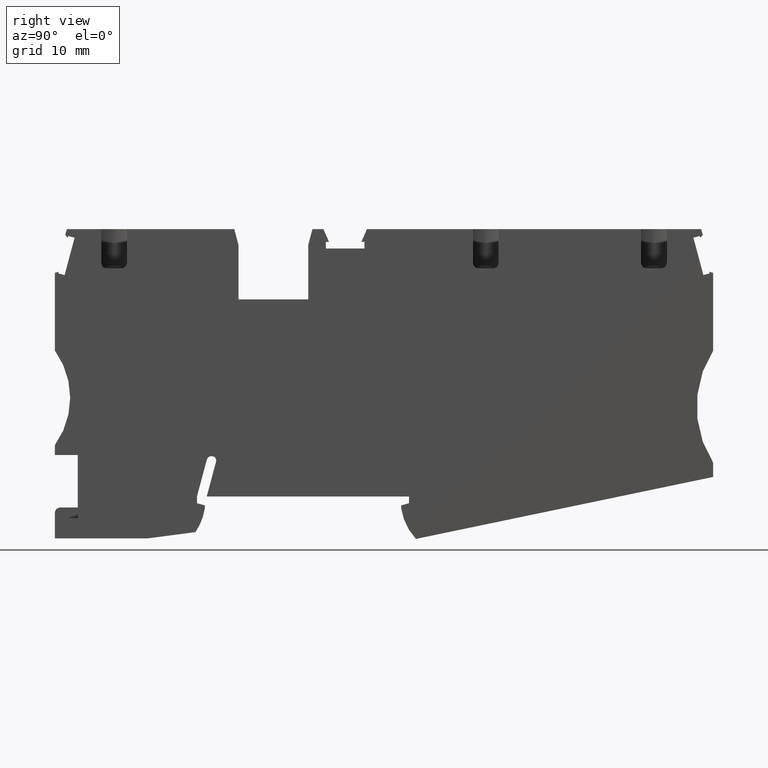
[diagram: clean part render]
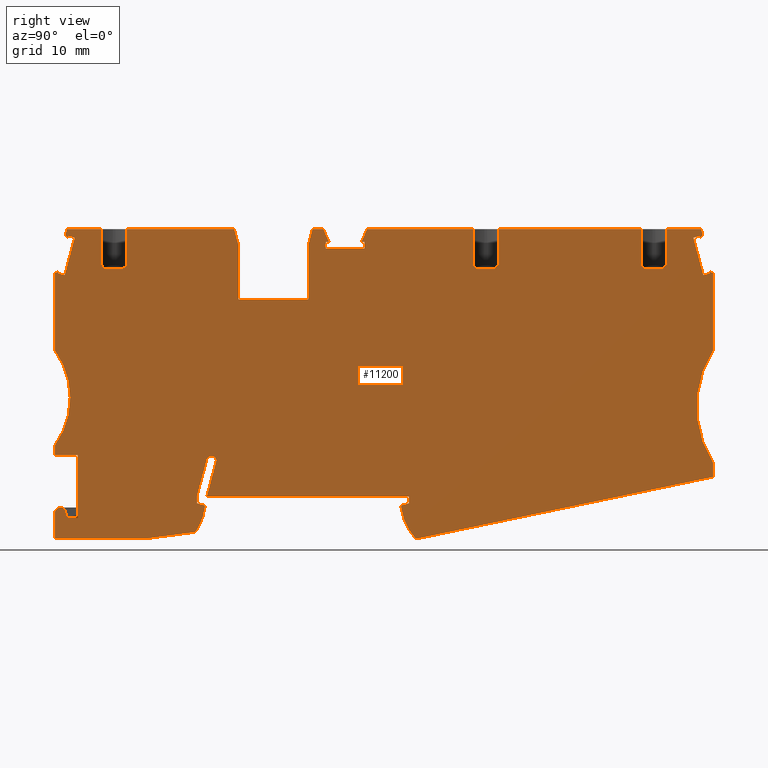
[diagram: same view with one face highlighted and labeled with its STEP entity id]
A machine part, right view. The second image highlights one B-rep face of the part: STEP entity #11200.
In plain terms, the highlighted planar face has unit normal (1, -0, -0).
Its self-contained STEP definition (entity closure, byte-faithful):
#4870=CARTESIAN_POINT('',(40.3897292437142,-1.37087776410223,-311.5));
#4880=DIRECTION('',(0.,0.,1.));
#4890=DIRECTION('',(1.,0.,0.));
#4900=AXIS2_PLACEMENT_3D('',#4870,#4880,#4890);
#4910=PLANE('',#4900);
#4920=CARTESIAN_POINT('',(23.5732116749715,-0.489281859000286,-311.5));
#4930=DIRECTION('',(0.,0.,1.));
#4940=DIRECTION('',(1.,0.,0.));
#4950=AXIS2_PLACEMENT_3D('',#4920,#4930,#4940);
#4960=CIRCLE('',#4950,9.499999999999);
#4970=CARTESIAN_POINT('',(14.1792389955952,-1.90465364729897,-311.5));
#4980=VERTEX_POINT('',#4970);
#4990=CARTESIAN_POINT('',(16.6027502113104,-6.94394428112553,-311.5));
#5000=VERTEX_POINT('',#4990);
#5010=EDGE_CURVE('',#4980,#5000,#4960,.T.);
#5020=ORIENTED_EDGE('',*,*,#5010,.T.);
#5030=CARTESIAN_POINT('',(14.1792389955965,-0.00465364729787865,
-311.500000000187));
#5040=DIRECTION('',(-6.9022565440946E-13,-1.,0.));
#5050=VECTOR('',#5040,1.);
#5060=LINE('',#5030,#5050);
#5070=CARTESIAN_POINT('',(14.1792389955955,-1.45298759745816,-311.5));
#5080=VERTEX_POINT('',#5070);
#5090=EDGE_CURVE('',#5080,#4980,#5060,.T.);
#5100=ORIENTED_EDGE('',*,*,#5090,.T.);
#5110=CARTESIAN_POINT('',(0.079238995595567,-5.23107121073597,
-311.500000000187));
#5120=DIRECTION('',(-0.965925826289086,-0.258819045102457,0.));
#5130=VECTOR('',#5120,1.);
#5140=LINE('',#5110,#5130);
#5150=CARTESIAN_POINT('',(15.4792389955956,-1.10465364729777,-311.5));
#5160=VERTEX_POINT('',#5150);
#5170=EDGE_CURVE('',#5160,#5080,#5140,.T.);
#5180=ORIENTED_EDGE('',*,*,#5170,.T.);
#5190=CARTESIAN_POINT('',(15.4792389955956,-0.00465364729787865,
-311.500000000187));
#5200=DIRECTION('',(0.,-1.,0.));
#5210=VECTOR('',#5200,1.);
#5220=LINE('',#5190,#5210);
#5230=CARTESIAN_POINT('',(15.4792389955956,-0.0046536472987242,-311.5));
#5240=VERTEX_POINT('',#5230);
#5250=EDGE_CURVE('',#5240,#5160,#5220,.T.);
#5260=ORIENTED_EDGE('',*,*,#5250,.T.);
#5270=CARTESIAN_POINT('',(0.079238995595567,-0.0046536472987242,
-311.500000000187));
#5280=DIRECTION('',(1.,0.,0.));
#5290=VECTOR('',#5280,1.);
#5300=LINE('',#5270,#5290);
#5310=CARTESIAN_POINT('',(-17.6207610044075,-0.0046536472987242,-311.5))
;
#5320=VERTEX_POINT('',#5310);
#5330=EDGE_CURVE('',#5320,#5240,#5300,.T.);
#5340=ORIENTED_EDGE('',*,*,#5330,.T.);
#5350=CARTESIAN_POINT('',(-17.6207610044073,-0.00465364729787865,
-311.500000000187));
#5360=DIRECTION('',(-0.258819045102995,-0.965925826288942,0.));
#5370=VECTOR('',#5360,1.);
#5380=LINE('',#5350,#5370);
#5390=CARTESIAN_POINT('',(-16.0924731774692,5.69899417141307,-311.5));
#5400=VERTEX_POINT('',#5390);
#5410=EDGE_CURVE('',#5400,#5320,#5380,.T.);
#5420=ORIENTED_EDGE('',*,*,#5410,.T.);
#5430=CARTESIAN_POINT('',(-16.7686212558717,5.88016750298492,
-311.500000000187));
#5440=DIRECTION('',(0.,0.,1.));
#5450=DIRECTION('',(1.,0.,0.));
#5460=AXIS2_PLACEMENT_3D('',#5430,#5440,#5450);
#5470=CIRCLE('',#5460,0.700000000000186);
#5480=CARTESIAN_POINT('',(-16.6087698885905,6.56167138439615,-311.5));
#5490=VERTEX_POINT('',#5480);
#5500=EDGE_CURVE('',#5400,#5490,#5470,.T.);
#5510=ORIENTED_EDGE('',*,*,#5500,.F.);
#5520=CARTESIAN_POINT('',(-16.8384347439757,5.79534635270211,
-311.500000000187));
#5530=DIRECTION('',(0.,0.,1.));
#5540=DIRECTION('',(1.,0.,0.));
#5550=AXIS2_PLACEMENT_3D('',#5520,#5530,#5540);
#5560=CIRCLE('',#5550,0.799999999999994);
#5570=CARTESIAN_POINT('',(-17.6111754050068,6.00240158878474,-311.5));
#5580=VERTEX_POINT('',#5570);
#5590=EDGE_CURVE('',#5490,#5580,#5560,.T.);
#5600=ORIENTED_EDGE('',*,*,#5590,.F.);
#5610=CARTESIAN_POINT('',(-19.2207610044058,-0.00465364729787865,
-311.500000000187));
#5620=DIRECTION('',(0.258819045103168,0.965925826288895,0.));
#5630=VECTOR('',#5620,1.);
#5640=LINE('',#5610,#5630);
#5650=CARTESIAN_POINT('',(-19.2207610044042,-0.00465364729206924,-311.5)
);
#5660=VERTEX_POINT('',#5650);
#5670=EDGE_CURVE('',#5660,#5580,#5640,.T.);
#5680=ORIENTED_EDGE('',*,*,#5670,.T.);
#5690=CARTESIAN_POINT('',(-19.2207610044043,-0.00465364729787865,
-311.500000000187));
#5700=DIRECTION('',(0.,1.,0.));
#5710=VECTOR('',#5700,1.);
#5720=LINE('',#5690,#5710);
#5730=CARTESIAN_POINT('',(-19.2207610044043,-1.10465364729774,-311.5));
#5740=VERTEX_POINT('',#5730);
#5750=EDGE_CURVE('',#5740,#5660,#5720,.T.);
#5760=ORIENTED_EDGE('',*,*,#5750,.T.);
#5770=CARTESIAN_POINT('',(0.079238995595567,-6.27607306122062,
-311.500000000187));
#5780=DIRECTION('',(-0.96592582628904,0.258819045102626,0.));
#5790=VECTOR('',#5780,1.);
#5800=LINE('',#5770,#5790);
#5810=CARTESIAN_POINT('',(-17.9207610044046,-1.45298759745826,-311.5));
#5820=VERTEX_POINT('',#5810);
#5830=EDGE_CURVE('',#5820,#5740,#5800,.T.);
#5840=ORIENTED_EDGE('',*,*,#5830,.T.);
#5850=CARTESIAN_POINT('',(-17.9207610044046,-0.00465364729787865,
-311.500000000187));
#5860=DIRECTION('',(0.,1.,0.));
#5870=VECTOR('',#5860,1.);
#5880=LINE('',#5850,#5870);
#5890=CARTESIAN_POINT('',(-17.9207610044046,-1.90465364729881,-311.5));
#5900=VERTEX_POINT('',#5890);
#5910=EDGE_CURVE('',#5900,#5820,#5880,.T.);
#5920=ORIENTED_EDGE('',*,*,#5910,.T.);
#5930=CARTESIAN_POINT('',(-27.3147336837811,-0.489281859000223,
-311.500000000187));
#5940=DIRECTION('',(0.,0.,1.));
#5950=DIRECTION('',(1.,0.,0.));
#5960=AXIS2_PLACEMENT_3D('',#5930,#5940,#5950);
#5970=CIRCLE('',#5960,9.49999999999916);
#5980=CARTESIAN_POINT('',(-19.4552630563244,-5.8258276946629,-311.5));
#5990=VERTEX_POINT('',#5980);
#6000=EDGE_CURVE('',#5990,#5900,#5970,.T.);
#6010=ORIENTED_EDGE('',*,*,#6000,.T.);
#6020=CARTESIAN_POINT('',(0.079238995595567,-3.25406171040154,
-311.500000000187));
#6030=DIRECTION('',(0.99144486137381,0.130526192220051,0.));
#6040=VECTOR('',#6030,1.);
#6050=LINE('',#6020,#6040);
#6060=CARTESIAN_POINT('',(-27.269970265555,-6.85465341667235,-311.5));
#6070=VERTEX_POINT('',#6060);
#6080=EDGE_CURVE('',#6070,#5990,#6050,.T.);
#6090=ORIENTED_EDGE('',*,*,#6080,.T.);
#6100=CARTESIAN_POINT('',(41.9231916323762,-6.85465341667235,
-311.500000000187));
#6110=DIRECTION('',(1.,0.,0.));
#6120=VECTOR('',#6110,1.);
#6130=LINE('',#6100,#6120);
#6140=CARTESIAN_POINT('',(-42.4707610044097,-6.85465341667235,-311.5));
#6150=VERTEX_POINT('',#6140);
#6160=EDGE_CURVE('',#6150,#6070,#6130,.T.);
#6170=ORIENTED_EDGE('',*,*,#6160,.T.);
#6180=CARTESIAN_POINT('',(-42.470761004408,-0.0046536472966423,
-311.500000000187));
#6190=DIRECTION('',(-2.56261314536511E-13,-1.,0.));
#6200=VECTOR('',#6190,1.);
#6210=LINE('',#6180,#6200);
#6220=CARTESIAN_POINT('',(-42.4707610044087,-2.70465364729745,-311.5));
#6230=VERTEX_POINT('',#6220);
#6240=EDGE_CURVE('',#6230,#6150,#6210,.T.);
#6250=ORIENTED_EDGE('',*,*,#6240,.T.);
#6260=CARTESIAN_POINT('',(-41.5707610044088,-2.70465364729768,
-311.500000000187));
#6270=DIRECTION('',(0.,0.,1.));
#6280=DIRECTION('',(1.,0.,0.));
#6290=AXIS2_PLACEMENT_3D('',#6260,#6270,#6280);
#6300=CIRCLE('',#6290,0.899999999999826);
#6310=CARTESIAN_POINT('',(-40.684434026698,-2.54837028739749,-311.5));
#6320=VERTEX_POINT('',#6310);
#6330=EDGE_CURVE('',#6320,#6230,#6300,.T.);
#6340=ORIENTED_EDGE('',*,*,#6330,.T.);
#6350=CARTESIAN_POINT('',(-40.7330059055458,-2.27290547394301,
-311.500000000187));
#6360=DIRECTION('',(0.17364817766693,-0.984807753012208,0.));
#6370=VECTOR('',#6360,1.);
#6380=LINE('',#6350,#6370);
#6390=CARTESIAN_POINT('',(-40.5573936739967,-3.26885193003045,-311.5));
#6400=VERTEX_POINT('',#6390);
#6410=EDGE_CURVE('',#6320,#6400,#6380,.T.);
#6420=ORIENTED_EDGE('',*,*,#6410,.F.);
#6430=CARTESIAN_POINT('',(-40.2619808923256,-3.2167626861757,
-311.500000000187));
#6440=DIRECTION('',(0.,0.,-1.));
#6450=DIRECTION('',(-1.,0.,0.));
#6460=AXIS2_PLACEMENT_3D('',#6430,#6440,#6450);
#6470=CIRCLE('',#6460,0.29997);
#6480=CARTESIAN_POINT('',(-40.2619808923256,-3.5167326861757,-311.5));
#6490=VERTEX_POINT('',#6480);
#6500=EDGE_CURVE('',#6490,#6400,#6470,.T.);
#6510=ORIENTED_EDGE('',*,*,#6500,.T.);
#6520=CARTESIAN_POINT('',(36.0639591977703,-3.5167326861757,
-311.500000000187));
#6530=DIRECTION('',(1.,0.,0.));
#6540=VECTOR('',#6530,1.);
#6550=LINE('',#6520,#6540);
#6560=CARTESIAN_POINT('',(-38.7207757619092,-3.5167326861757,-311.5));
#6570=VERTEX_POINT('',#6560);
#6580=EDGE_CURVE('',#6490,#6570,#6550,.T.);
#6590=ORIENTED_EDGE('',*,*,#6580,.F.);
#6600=CARTESIAN_POINT('',(-38.7207757619092,-2.27290547394301,
-311.500000000187));
#6610=DIRECTION('',(0.,1.,0.));
#6620=VECTOR('',#6610,1.);
#6630=LINE('',#6600,#6620);
#6640=CARTESIAN_POINT('',(-38.7207757619092,6.79534635270041,-311.5));
#6650=VERTEX_POINT('',#6640);
#6660=EDGE_CURVE('',#6570,#6650,#6630,.T.);
#6670=ORIENTED_EDGE('',*,*,#6660,.F.);
#6680=CARTESIAN_POINT('',(0.,6.79534635270042,-311.5));
#6690=DIRECTION('',(1.,1.28021104781828E-16,0.));
#6700=VECTOR('',#6690,1.);
#6710=LINE('',#6680,#6700);
#6720=CARTESIAN_POINT('',(-42.4707610044104,6.79534635270041,-311.5));
#6730=VERTEX_POINT('',#6720);
#6740=EDGE_CURVE('',#6730,#6650,#6710,.T.);
#6750=ORIENTED_EDGE('',*,*,#6740,.T.);
#6760=CARTESIAN_POINT('',(-42.4707610044104,-1.77635683940025E-15,
-311.500000000187));
#6770=DIRECTION('',(0.,1.,0.));
#6780=VECTOR('',#6770,1.);
#6790=LINE('',#6760,#6780);
#6800=CARTESIAN_POINT('',(-42.4707610044104,8.39534635269172,-311.5));
#6810=VERTEX_POINT('',#6800);
#6820=EDGE_CURVE('',#6730,#6810,#6790,.T.);
#6830=ORIENTED_EDGE('',*,*,#6820,.F.);
#6840=CARTESIAN_POINT('',(-53.1561482224695,16.1453463527008,
-311.500000000187));
#6850=DIRECTION('',(0.,0.,-1.));
#6860=DIRECTION('',(-1.,0.,0.));
#6870=AXIS2_PLACEMENT_3D('',#6840,#6850,#6860);
#6880=CIRCLE('',#6870,13.2);
#6890=CARTESIAN_POINT('',(-42.4707610044104,23.8953463527098,-311.5));
#6900=VERTEX_POINT('',#6890);
#6910=EDGE_CURVE('',#6900,#6810,#6880,.T.);
#6920=ORIENTED_EDGE('',*,*,#6910,.T.);
#6930=CARTESIAN_POINT('',(-42.4707610044105,-1.77635683940025E-15,
-311.500000000187));
#6940=DIRECTION('',(1.11022302462516E-16,-1.,0.));
#6950=VECTOR('',#6940,1.);
#6960=LINE('',#6930,#6950);
#6970=CARTESIAN_POINT('',(-42.4707610044105,36.5906133774011,-311.5));
#6980=VERTEX_POINT('',#6970);
#6990=EDGE_CURVE('',#6980,#6900,#6960,.T.);
#7000=ORIENTED_EDGE('',*,*,#6990,.T.);
#7010=CARTESIAN_POINT('',(0.,47.9706194901391,-311.500000000187));
#7020=DIRECTION('',(0.965925826290939,0.25881904509554,0.));
#7030=VECTOR('',#7020,1.);
#7040=LINE('',#7010,#7030);
#7050=CARTESIAN_POINT('',(-41.831857148107,36.7618071497337,-311.5));
#7060=VERTEX_POINT('',#7050);
#7070=EDGE_CURVE('',#6980,#7060,#7040,.T.);
#7080=ORIENTED_EDGE('',*,*,#7070,.F.);
#7090=CARTESIAN_POINT('',(-51.6834006272622,-0.00465364729792483,
-311.500000000187));
#7100=DIRECTION('',(0.258819045103503,0.965925826288805,0.));
#7110=VECTOR('',#7100,1.);
#7120=LINE('',#7090,#7110);
#7130=CARTESIAN_POINT('',(-41.902335546583,36.4987781857864,-311.5));
#7140=VERTEX_POINT('',#7130);
#7150=EDGE_CURVE('',#7140,#7060,#7120,.T.);
#7160=ORIENTED_EDGE('',*,*,#7150,.T.);
#7170=CARTESIAN_POINT('',(2.08615347219165E-11,25.2710812150724,
-311.500000000187));
#7180=DIRECTION('',(-0.965925826288933,0.258819045103026,0.));
#7190=VECTOR('',#7180,1.);
#7200=LINE('',#7170,#7190);
#7210=CARTESIAN_POINT('',(-40.8687949124653,36.2218418075292,-311.5));
#7220=VERTEX_POINT('',#7210);
#7230=EDGE_CURVE('',#7220,#7140,#7200,.T.);
#7240=ORIENTED_EDGE('',*,*,#7230,.T.);
#7250=CARTESIAN_POINT('',(-50.3968108686426,0.662802164397584,
-311.500000000187));
#7260=DIRECTION('',(0.258819045106929,0.965925826287887,0.));
#7270=VECTOR('',#7260,1.);
#7280=LINE('',#7250,#7270);
#7290=CARTESIAN_POINT('',(-39.2317644521368,42.3313226589013,-311.5));
#7300=VERTEX_POINT('',#7290);
#7310=EDGE_CURVE('',#7220,#7300,#7280,.T.);
#7320=ORIENTED_EDGE('',*,*,#7310,.F.);
#7330=CARTESIAN_POINT('',(2.08615347219165E-11,31.8192030561188,
-311.500000000187));
#7340=DIRECTION('',(0.965925826287968,-0.258819045106629,0.));
#7350=VECTOR('',#7340,1.);
#7360=LINE('',#7330,#7350);
#7370=CARTESIAN_POINT('',(-40.2653050862649,42.6082590371653,-311.5));
#7380=VERTEX_POINT('',#7370);
#7390=EDGE_CURVE('',#7380,#7300,#7360,.T.);
#7400=ORIENTED_EDGE('',*,*,#7390,.T.);
#7410=CARTESIAN_POINT('',(-37.0892151967411,54.4615878740956,
-311.500000000187));
#7420=DIRECTION('',(0.258819045106152,0.965925826288095,0.));
#7430=VECTOR('',#7420,1.);
#7440=LINE('',#7410,#7430);
#7450=CARTESIAN_POINT('',(-40.3357834847421,42.3452300732161,-311.5));
#7460=VERTEX_POINT('',#7450);
#7470=EDGE_CURVE('',#7460,#7380,#7440,.T.);
#7480=ORIENTED_EDGE('',*,*,#7470,.T.);
#7490=CARTESIAN_POINT('',(2.01410023551585,-0.00465364729791817,
-311.500000000187));
#7500=DIRECTION('',(0.70710678118441,-0.707106781188685,0.));
#7510=VECTOR('',#7500,1.);
#7520=LINE('',#7490,#7510);
#7530=CARTESIAN_POINT('',(-40.7685266726324,42.777973261109,-311.5));
#7540=VERTEX_POINT('',#7530);
#7550=EDGE_CURVE('',#7540,#7460,#7520,.T.);
#7560=ORIENTED_EDGE('',*,*,#7550,.T.);
#7570=CARTESIAN_POINT('',(-52.0153110399529,0.804402581302007,
-311.500000000187));
#7580=DIRECTION('',(-0.25881904510715,-0.965925826287828,0.));
#7590=VECTOR('',#7580,1.);
#7600=LINE('',#7570,#7590);
#7610=CARTESIAN_POINT('',(-40.5093198339557,43.7453463527013,-311.5));
#7620=VERTEX_POINT('',#7610);
#7630=EDGE_CURVE('',#7620,#7540,#7600,.T.);
#7640=ORIENTED_EDGE('',*,*,#7630,.T.);
#7650=CARTESIAN_POINT('',(0.,43.7453463527013,-311.500000000187));
#7660=DIRECTION('',(1.,0.,0.));
#7670=VECTOR('',#7660,1.);
#7680=LINE('',#7650,#7670);
#7690=CARTESIAN_POINT('',(-34.8707610044044,43.7453463527013,-311.5));
#7700=VERTEX_POINT('',#7690);
#7710=EDGE_CURVE('',#7620,#7700,#7680,.T.);
#7720=ORIENTED_EDGE('',*,*,#7710,.F.);
#7730=CARTESIAN_POINT('',(-34.8707610044044,-2.27290547394301,
-311.500000000187));
#7740=DIRECTION('',(0.,1.,0.));
#7750=VECTOR('',#7740,1.);
#7760=LINE('',#7730,#7750);
#7770=CARTESIAN_POINT('',(-34.8707610044044,38.245346352689,-311.5));
#7780=VERTEX_POINT('',#7770);
#7790=EDGE_CURVE('',#7780,#7700,#7760,.T.);
#7800=ORIENTED_EDGE('',*,*,#7790,.T.);
#7810=CARTESIAN_POINT('',(-33.8707610044044,38.245346352689,
-311.500000000187));
#7820=DIRECTION('',(0.,-1.3924232573003E-14,-1.));
#7830=DIRECTION('',(0.,-1.,1.3924232573003E-14));
#7840=AXIS2_PLACEMENT_3D('',#7810,#7820,#7830);
#7850=CIRCLE('',#7840,1.);
#7860=CARTESIAN_POINT('',(-33.8707610044044,37.245346352689,-311.5));
#7870=VERTEX_POINT('',#7860);
#7880=EDGE_CURVE('',#7870,#7780,#7850,.T.);
#7890=ORIENTED_EDGE('',*,*,#7880,.T.);
#7900=CARTESIAN_POINT('',(36.0639591977703,37.245346352689,
-311.500000000187));
#7910=DIRECTION('',(1.,-2.94070999470988E-35,0.));
#7920=VECTOR('',#7910,1.);
#7930=LINE('',#7900,#7920);
#7940=CARTESIAN_POINT('',(-31.6707610044044,37.245346352689,-311.5));
#7950=VERTEX_POINT('',#7940);
#7960=EDGE_CURVE('',#7870,#7950,#7930,.T.);
#7970=ORIENTED_EDGE('',*,*,#7960,.F.);
#7980=CARTESIAN_POINT('',(-31.6707610044044,38.245346352689,
-311.500000000187));
#7990=DIRECTION('',(0.,-1.3924232573003E-14,-1.));
#8000=DIRECTION('',(0.,-1.,1.3924232573003E-14));
#8010=AXIS2_PLACEMENT_3D('',#7980,#7990,#8000);
#8020=CIRCLE('',#8010,1.);
#8030=CARTESIAN_POINT('',(-30.6707610044044,38.245346352689,-311.5));
#8040=VERTEX_POINT('',#8030);
#8050=EDGE_CURVE('',#8040,#7950,#8020,.T.);
#8060=ORIENTED_EDGE('',*,*,#8050,.T.);
#8070=CARTESIAN_POINT('',(-30.6707610044044,-2.27290547394301,
-311.500000000187));
#8080=DIRECTION('',(0.,1.,0.));
#8090=VECTOR('',#8080,1.);
#8100=LINE('',#8070,#8090);
#8110=CARTESIAN_POINT('',(-30.6707610044044,43.7453463527013,-311.5));
#8120=VERTEX_POINT('',#8110);
#8130=EDGE_CURVE('',#8040,#8120,#8100,.T.);
#8140=ORIENTED_EDGE('',*,*,#8130,.F.);
#8150=CARTESIAN_POINT('',(-13.1174289047254,43.7453463527013,-311.5));
#8160=VERTEX_POINT('',#8150);
#8170=EDGE_CURVE('',#8120,#8160,#7680,.T.);
#8180=ORIENTED_EDGE('',*,*,#8170,.F.);
#8190=CARTESIAN_POINT('',(-1.40432529493389,0.0314485666422808,
-311.500000000187));
#8200=DIRECTION('',(0.258819045102528,-0.965925826289066,0.));
#8210=VECTOR('',#8200,1.);
#8220=LINE('',#8190,#8210);
#8230=CARTESIAN_POINT('',(-12.4207610044044,41.1453463527013,-311.5));
#8240=VERTEX_POINT('',#8230);
#8250=EDGE_CURVE('',#8160,#8240,#8220,.T.);
#8260=ORIENTED_EDGE('',*,*,#8250,.F.);
#8270=CARTESIAN_POINT('',(-12.4207610044044,-1.77635683940025E-15,
-311.500000000187));
#8280=DIRECTION('',(2.09097636008262E-16,-1.,0.));
#8290=VECTOR('',#8280,1.);
#8300=LINE('',#8270,#8290);
#8310=CARTESIAN_POINT('',(-12.4207610044044,32.2453463527013,-311.5));
#8320=VERTEX_POINT('',#8310);
#8330=EDGE_CURVE('',#8240,#8320,#8300,.T.);
#8340=ORIENTED_EDGE('',*,*,#8330,.F.);
#8350=CARTESIAN_POINT('',(0.,32.2453463527013,-311.500000000187));
#8360=DIRECTION('',(1.,0.,0.));
#8370=VECTOR('',#8360,1.);
#8380=LINE('',#8350,#8370);
#8390=CARTESIAN_POINT('',(-1.02076100440444,32.2453463527013,-311.5));
#8400=VERTEX_POINT('',#8390);
#8410=EDGE_CURVE('',#8320,#8400,#8380,.T.);
#8420=ORIENTED_EDGE('',*,*,#8410,.F.);
#8430=CARTESIAN_POINT('',(-1.02076100440444,-1.77635683940025E-15,
-311.500000000187));
#8440=DIRECTION('',(0.,1.,0.));
#8450=VECTOR('',#8440,1.);
#8460=LINE('',#8430,#8450);
#8470=CARTESIAN_POINT('',(-1.02076100440444,41.1453463527013,-311.5));
#8480=VERTEX_POINT('',#8470);
#8490=EDGE_CURVE('',#8400,#8480,#8460,.T.);
#8500=ORIENTED_EDGE('',*,*,#8490,.F.);
#8510=CARTESIAN_POINT('',(-12.0456233319096,-1.77635683940025E-15,
-311.500000000187));
#8520=DIRECTION('',(0.258819045102521,0.965925826289068,0.));
#8530=VECTOR('',#8520,1.);
#8540=LINE('',#8510,#8530);
#8550=CARTESIAN_POINT('',(-0.324093104083525,43.7453463527013,-311.5));
#8560=VERTEX_POINT('',#8550);
#8570=EDGE_CURVE('',#8480,#8560,#8540,.T.);
#8580=ORIENTED_EDGE('',*,*,#8570,.F.);
#8590=CARTESIAN_POINT('',(0.,43.7453463527013,-311.500000000187));
#8600=DIRECTION('',(1.,0.,0.));
#8610=VECTOR('',#8600,1.);
#8620=LINE('',#8590,#8610);
#8630=CARTESIAN_POINT('',(1.46753955185464,43.7453463527013,-311.5));
#8640=VERTEX_POINT('',#8630);
#8650=EDGE_CURVE('',#8560,#8640,#8620,.T.);
#8660=ORIENTED_EDGE('',*,*,#8650,.F.);
#8670=CARTESIAN_POINT('',(20.6916521269261,-1.77635683940025E-15,
-311.500000000187));
#8680=DIRECTION('',(0.402320578211921,-0.915498854366965,0.));
#8690=VECTOR('',#8680,1.);
#8700=LINE('',#8670,#8690);
#8710=CARTESIAN_POINT('',(2.39259239391454,41.6403463527046,-311.5));
#8720=VERTEX_POINT('',#8710);
#8730=EDGE_CURVE('',#8640,#8720,#8700,.T.);
#8740=ORIENTED_EDGE('',*,*,#8730,.F.);
#8750=CARTESIAN_POINT('',(-9.83326100440379,41.6403463527046,
-311.500000000187));
#8760=DIRECTION('',(-1.,-3.4315449377114E-29,0.));
#8770=VECTOR('',#8760,1.);
#8780=LINE('',#8750,#8770);
#8790=CARTESIAN_POINT('',(1.86673899559551,41.6403463527046,-311.5));
#8800=VERTEX_POINT('',#8790);
#8810=EDGE_CURVE('',#8720,#8800,#8780,.T.);
#8820=ORIENTED_EDGE('',*,*,#8810,.F.);
#8830=CARTESIAN_POINT('',(1.86673899559551,-0.00465364729787865,
-311.500000000187));
#8840=DIRECTION('',(0.,1.,0.));
#8850=VECTOR('',#8840,1.);
#8860=LINE('',#8830,#8850);
#8870=CARTESIAN_POINT('',(1.86673899559551,40.570346352705,-311.5));
#8880=VERTEX_POINT('',#8870);
#8890=EDGE_CURVE('',#8880,#8800,#8860,.T.);
#8900=ORIENTED_EDGE('',*,*,#8890,.T.);
#8910=CARTESIAN_POINT('',(0.,40.5703463527051,-311.500000000187));
#8920=DIRECTION('',(-1.,5.79813974610488E-14,0.));
#8930=VECTOR('',#8920,1.);
#8940=LINE('',#8910,#8930);
#8950=CARTESIAN_POINT('',(8.19173899559501,40.5703463527046,-311.5));
#8960=VERTEX_POINT('',#8950);
#8970=EDGE_CURVE('',#8960,#8880,#8940,.T.);
#8980=ORIENTED_EDGE('',*,*,#8970,.T.);
#8990=CARTESIAN_POINT('',(8.19173899559562,-0.00465364729787865,
-311.500000000187));
#9000=DIRECTION('',(0.,-1.,0.));
#9010=VECTOR('',#9000,1.);
#9020=LINE('',#8990,#9010);
#9030=CARTESIAN_POINT('',(8.19173899559501,41.6403463527046,-311.5));
#9040=VERTEX_POINT('',#9030);
#9050=EDGE_CURVE('',#9040,#8960,#9020,.T.);
#9060=ORIENTED_EDGE('',*,*,#9050,.T.);
#9070=CARTESIAN_POINT('',(19.891738995595,41.6403463527046,
-311.500000000187));
#9080=DIRECTION('',(-1.,-3.4315449377114E-29,0.));
#9090=VECTOR('',#9080,1.);
#9100=LINE('',#9070,#9090);
#9110=CARTESIAN_POINT('',(7.66588559727528,41.6403463527046,-311.5));
#9120=VERTEX_POINT('',#9110);
#9130=EDGE_CURVE('',#9040,#9120,#9100,.T.);
#9140=ORIENTED_EDGE('',*,*,#9130,.F.);
#9150=CARTESIAN_POINT('',(-10.6331741357791,-1.77635683940025E-15,
-311.500000000187));
#9160=DIRECTION('',(-0.402320578212709,-0.915498854366619,0.));
#9170=VECTOR('',#9160,1.);
#9180=LINE('',#9150,#9170);
#9190=CARTESIAN_POINT('',(8.59093843934816,43.7453463527259,-311.5));
#9200=VERTEX_POINT('',#9190);
#9210=EDGE_CURVE('',#9200,#9120,#9180,.T.);
#9220=ORIENTED_EDGE('',*,*,#9210,.T.);
#9230=CARTESIAN_POINT('',(22.8248923127725,43.7453463527259,
-311.500000000187));
#9240=DIRECTION('',(-1.,-2.22044604925031E-16,0.));
#9250=VECTOR('',#9240,1.);
#9260=LINE('',#9230,#9250);
#9270=CARTESIAN_POINT('',(25.9292389956094,43.7453463527259,-311.5));
#9280=VERTEX_POINT('',#9270);
#9290=EDGE_CURVE('',#9280,#9200,#9260,.T.);
#9300=ORIENTED_EDGE('',*,*,#9290,.T.);
#9310=CARTESIAN_POINT('',(25.9292389956094,-2.27290547394301,
-311.500000000187));
#9320=DIRECTION('',(-4.18195272016523E-16,1.,0.));
#9330=VECTOR('',#9320,1.);
#9340=LINE('',#9310,#9330);
#9350=CARTESIAN_POINT('',(25.9292389956094,38.245346352689,-311.5));
#9360=VERTEX_POINT('',#9350);
#9370=EDGE_CURVE('',#9360,#9280,#9340,.T.);
#9380=ORIENTED_EDGE('',*,*,#9370,.T.);
#9390=CARTESIAN_POINT('',(26.9292389956094,38.245346352689,
-311.500000000187));
#9400=DIRECTION('',(-5.82304822848834E-30,1.3924232573003E-14,1.));
#9410=DIRECTION('',(4.18195272016523E-16,-1.,1.3924232573003E-14));
#9420=AXIS2_PLACEMENT_3D('',#9390,#9400,#9410);
#9430=CIRCLE('',#9420,1.);
#9440=CARTESIAN_POINT('',(26.9292389956094,37.245346352689,-311.5));
#9450=VERTEX_POINT('',#9440);
#9460=EDGE_CURVE('',#9360,#9450,#9430,.T.);
#9470=ORIENTED_EDGE('',*,*,#9460,.F.);
#9480=CARTESIAN_POINT('',(36.0639591977703,37.245346352689,
-311.500000000187));
#9490=DIRECTION('',(-1.,-4.18195272016523E-16,0.));
#9500=VECTOR('',#9490,1.);
#9510=LINE('',#9480,#9500);
#9520=CARTESIAN_POINT('',(29.1292389956094,37.245346352689,-311.5));
#9530=VERTEX_POINT('',#9520);
#9540=EDGE_CURVE('',#9530,#9450,#9510,.T.);
#9550=ORIENTED_EDGE('',*,*,#9540,.T.);
#9560=CARTESIAN_POINT('',(29.1292389956094,38.245346352689,
-311.500000000187));
#9570=DIRECTION('',(-5.82304822848834E-30,1.3924232573003E-14,1.));
#9580=DIRECTION('',(4.18195272016523E-16,-1.,1.3924232573003E-14));
#9590=AXIS2_PLACEMENT_3D('',#9560,#9570,#9580);
#9600=CIRCLE('',#9590,1.);
#9610=CARTESIAN_POINT('',(30.1292389956094,38.245346352689,-311.5));
#9620=VERTEX_POINT('',#9610);
#9630=EDGE_CURVE('',#9530,#9620,#9600,.T.);
#9640=ORIENTED_EDGE('',*,*,#9630,.F.);
#9650=CARTESIAN_POINT('',(30.1292389956094,-2.27290547394301,
-311.500000000187));
#9660=DIRECTION('',(-4.18195272016523E-16,1.,0.));
#9670=VECTOR('',#9660,1.);
#9680=LINE('',#9650,#9670);
#9690=CARTESIAN_POINT('',(30.1292389956094,43.7453463527259,-311.5));
#9700=VERTEX_POINT('',#9690);
#9710=EDGE_CURVE('',#9620,#9700,#9680,.T.);
#9720=ORIENTED_EDGE('',*,*,#9710,.F.);
#9730=CARTESIAN_POINT('',(53.4292389956162,43.7453463527259,-311.5));
#9740=VERTEX_POINT('',#9730);
#9750=EDGE_CURVE('',#9740,#9700,#9260,.T.);
#9760=ORIENTED_EDGE('',*,*,#9750,.T.);
#9770=CARTESIAN_POINT('',(53.4292389956162,-2.27290547394301,
-311.500000000187));
#9780=DIRECTION('',(-4.18195272016523E-16,1.,0.));
#9790=VECTOR('',#9780,1.);
#9800=LINE('',#9770,#9790);
#9810=CARTESIAN_POINT('',(53.4292389956162,38.245346352689,-311.5));
#9820=VERTEX_POINT('',#9810);
#9830=EDGE_CURVE('',#9820,#9740,#9800,.T.);
#9840=ORIENTED_EDGE('',*,*,#9830,.T.);
#9850=CARTESIAN_POINT('',(54.4292389956162,38.245346352689,
-311.500000000187));
#9860=DIRECTION('',(-5.82304822848834E-30,1.3924232573003E-14,1.));
#9870=DIRECTION('',(4.18195272016523E-16,-1.,1.3924232573003E-14));
#9880=AXIS2_PLACEMENT_3D('',#9850,#9860,#9870);
#9890=CIRCLE('',#9880,1.);
#9900=CARTESIAN_POINT('',(54.4292389956162,37.245346352689,-311.5));
#9910=VERTEX_POINT('',#9900);
#9920=EDGE_CURVE('',#9820,#9910,#9890,.T.);
#9930=ORIENTED_EDGE('',*,*,#9920,.F.);
#9940=CARTESIAN_POINT('',(36.0639591977703,37.245346352689,
-311.500000000187));
#9950=DIRECTION('',(-1.,-4.18195272016523E-16,0.));
#9960=VECTOR('',#9950,1.);
#9970=LINE('',#9940,#9960);
#9980=CARTESIAN_POINT('',(56.6292389956162,37.245346352689,-311.5));
#9990=VERTEX_POINT('',#9980);
#10000=EDGE_CURVE('',#9990,#9910,#9970,.T.);
#10010=ORIENTED_EDGE('',*,*,#10000,.T.);
#10020=CARTESIAN_POINT('',(56.6292389956162,38.245346352689,
-311.500000000187));
#10030=DIRECTION('',(-5.82304822848834E-30,1.3924232573003E-14,1.));
#10040=DIRECTION('',(4.18195272016523E-16,-1.,1.3924232573003E-14));
#10050=AXIS2_PLACEMENT_3D('',#10020,#10030,#10040);
#10060=CIRCLE('',#10050,1.);
#10070=CARTESIAN_POINT('',(57.6292389956162,38.245346352689,-311.5));
#10080=VERTEX_POINT('',#10070);
#10090=EDGE_CURVE('',#9990,#10080,#10060,.T.);
#10100=ORIENTED_EDGE('',*,*,#10090,.F.);
#10110=CARTESIAN_POINT('',(57.6292389956162,-2.27290547394301,
-311.500000000187));
#10120=DIRECTION('',(-4.18195272016523E-16,1.,0.));
#10130=VECTOR('',#10120,1.);
#10140=LINE('',#10110,#10130);
#10150=CARTESIAN_POINT('',(57.6292389956162,43.7453463527259,-311.5));
#10160=VERTEX_POINT('',#10150);
#10170=EDGE_CURVE('',#10080,#10160,#10140,.T.);
#10180=ORIENTED_EDGE('',*,*,#10170,.F.);
#10190=CARTESIAN_POINT('',(63.2677978251608,43.7453463527259,-311.5));
#10200=VERTEX_POINT('',#10190);
#10210=EDGE_CURVE('',#10200,#10160,#9260,.T.);
#10220=ORIENTED_EDGE('',*,*,#10210,.T.);
#10230=CARTESIAN_POINT('',(74.7737890311647,0.804402581302028,
-311.500000000187));
#10240=DIRECTION('',(0.258819045107151,-0.965925826287828,0.));
#10250=VECTOR('',#10240,1.);
#10260=LINE('',#10230,#10250);
#10270=CARTESIAN_POINT('',(63.5270046638441,42.7779732611091,-311.5));
#10280=VERTEX_POINT('',#10270);
#10290=EDGE_CURVE('',#10200,#10280,#10260,.T.);
#10300=ORIENTED_EDGE('',*,*,#10290,.F.);
#10310=CARTESIAN_POINT('',(20.7443777556959,-0.00465364729790929,
-311.500000000187));
#10320=DIRECTION('',(-0.70710678118441,-0.707106781188685,0.));
#10330=VECTOR('',#10320,1.);
#10340=LINE('',#10310,#10330);
#10350=CARTESIAN_POINT('',(63.0942614759539,42.3452300732162,-311.5));
#10360=VERTEX_POINT('',#10350);
#10370=EDGE_CURVE('',#10280,#10360,#10340,.T.);
#10380=ORIENTED_EDGE('',*,*,#10370,.F.);
#10390=CARTESIAN_POINT('',(75.0496548637773,-2.27290547394301,
-311.500000000187));
#10400=DIRECTION('',(-0.258819045106153,0.965925826288095,0.));
#10410=VECTOR('',#10400,1.);
#10420=LINE('',#10390,#10410);
#10430=CARTESIAN_POINT('',(63.0237830774766,42.6082590371654,-311.5));
#10440=VERTEX_POINT('',#10430);
#10450=EDGE_CURVE('',#10360,#10440,#10420,.T.);
#10460=ORIENTED_EDGE('',*,*,#10450,.F.);
#10470=CARTESIAN_POINT('',(36.0639591977703,35.3843960003899,
-311.500000000187));
#10480=DIRECTION('',(-0.965925826287968,-0.258819045106629,0.));
#10490=VECTOR('',#10480,1.);
#10500=LINE('',#10470,#10490);
#10510=CARTESIAN_POINT('',(61.9902424433485,42.3313226589013,-311.5));
#10520=VERTEX_POINT('',#10510);
#10530=EDGE_CURVE('',#10440,#10520,#10500,.T.);
#10540=ORIENTED_EDGE('',*,*,#10530,.F.);
#10550=CARTESIAN_POINT('',(73.1552888598543,0.662802164397604,
-311.500000000187));
#10560=DIRECTION('',(-0.25881904510693,0.965925826287887,0.));
#10570=VECTOR('',#10560,1.);
#10580=LINE('',#10550,#10570);
#10590=CARTESIAN_POINT('',(63.627272903677,36.2218418075292,-311.5));
#10600=VERTEX_POINT('',#10590);
#10610=EDGE_CURVE('',#10600,#10520,#10580,.T.);
#10620=ORIENTED_EDGE('',*,*,#10610,.T.);
#10630=CARTESIAN_POINT('',(36.0639591977703,28.8362741592904,
-311.500000000187));
#10640=DIRECTION('',(0.965925826288933,0.258819045103026,0.));
#10650=VECTOR('',#10640,1.);
#10660=LINE('',#10630,#10650);
#10670=CARTESIAN_POINT('',(64.6608135377947,36.4987781857864,-311.5));
#10680=VERTEX_POINT('',#10670);
#10690=EDGE_CURVE('',#10600,#10680,#10660,.T.);
#10700=ORIENTED_EDGE('',*,*,#10690,.F.);
#10710=CARTESIAN_POINT('',(75.0496548636564,-2.27290547394301,
-311.500000000187));
#10720=DIRECTION('',(-0.258819045103503,0.965925826288805,0.));
#10730=VECTOR('',#10720,1.);
#10740=LINE('',#10710,#10730);
#10750=CARTESIAN_POINT('',(64.5903351393187,36.7618071497338,-311.5));
#10760=VERTEX_POINT('',#10750);
#10770=EDGE_CURVE('',#10680,#10760,#10740,.T.);
#10780=ORIENTED_EDGE('',*,*,#10770,.F.);
#10790=CARTESIAN_POINT('',(22.7584779912117,47.9706194901391,
-311.500000000187));
#10800=DIRECTION('',(-0.965925826290939,0.25881904509554,0.));
#10810=VECTOR('',#10800,1.);
#10820=LINE('',#10790,#10810);
#10830=CARTESIAN_POINT('',(65.2292389956222,36.5906133774011,-311.5));
#10840=VERTEX_POINT('',#10830);
#10850=EDGE_CURVE('',#10840,#10760,#10820,.T.);
#10860=ORIENTED_EDGE('',*,*,#10850,.T.);
#10870=CARTESIAN_POINT('',(65.2292389956222,1.68753899743024E-14,
-311.500000000187));
#10880=DIRECTION('',(1.11022302462516E-16,-1.,0.));
#10890=VECTOR('',#10880,1.);
#10900=LINE('',#10870,#10890);
#10910=CARTESIAN_POINT('',(65.2292389956222,23.8882784203722,-311.5));
#10920=VERTEX_POINT('',#10910);
#10930=EDGE_CURVE('',#10840,#10920,#10900,.T.);
#10940=ORIENTED_EDGE('',*,*,#10930,.F.);
#10950=CARTESIAN_POINT('',(79.5292389956101,14.6953463527267,
-311.500000000187));
#10960=DIRECTION('',(0.,0.,-1.));
#10970=DIRECTION('',(-1.,0.,0.));
#10980=AXIS2_PLACEMENT_3D('',#10950,#10960,#10970);
#10990=CIRCLE('',#10980,17.);
#11000=CARTESIAN_POINT('',(65.2292389956101,5.50241428509999,-311.5));
#11010=VERTEX_POINT('',#11000);
#11020=EDGE_CURVE('',#11010,#10920,#10990,.T.);
#11030=ORIENTED_EDGE('',*,*,#11020,.T.);
#11040=CARTESIAN_POINT('',(65.2292389956101,-1.77635683940025E-15,
-311.500000000187));
#11050=DIRECTION('',(0.,-1.,0.));
#11060=VECTOR('',#11050,1.);
#11070=LINE('',#11040,#11060);
#11080=CARTESIAN_POINT('',(65.2292389956101,3.1958550724784,-311.5));
#11090=VERTEX_POINT('',#11080);
#11100=EDGE_CURVE('',#11010,#11090,#11070,.T.);
#11110=ORIENTED_EDGE('',*,*,#11100,.F.);
#11120=CARTESIAN_POINT('',(0.,-10.406019377838,-311.5));
#11130=DIRECTION('',(-0.978943097300313,-0.20413331978898,0.));
#11140=VECTOR('',#11130,1.);
#11150=LINE('',#11120,#11140);
#11160=EDGE_CURVE('',#11090,#5000,#11150,.T.);
#11170=ORIENTED_EDGE('',*,*,#11160,.F.);
#11180=EDGE_LOOP('',(#11170,#11110,#11030,#10940,#10860,#10780,#10700,
#10620,#10540,#10460,#10380,#10300,#10220,#10180,#10100,#10010,#9930,
#9840,#9760,#9720,#9640,#9550,#9470,#9380,#9300,#9220,#9140,#9060,#8980,
#8900,#8820,#8740,#8660,#8580,#8500,#8420,#8340,#8260,#8180,#8140,#8060,
#7970,#7890,#7800,#7720,#7640,#7560,#7480,#7400,#7320,#7240,#7160,#7080,
#7000,#6920,#6830,#6750,#6670,#6590,#6510,#6420,#6340,#6250,#6170,#6090,
#6010,#5920,#5840,#5760,#5680,#5600,#5510,#5420,#5340,#5260,#5180,#5100,
#5020));
#11190=FACE_OUTER_BOUND('',#11180,.T.);
#11200=ADVANCED_FACE('',(#11190),#4910,.T.);